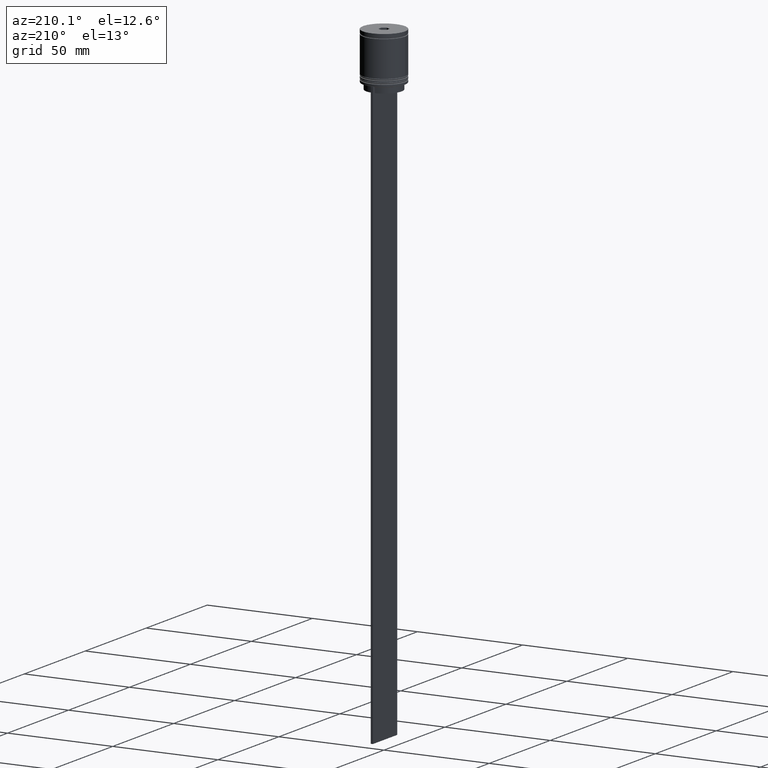
[diagram: clean part render]
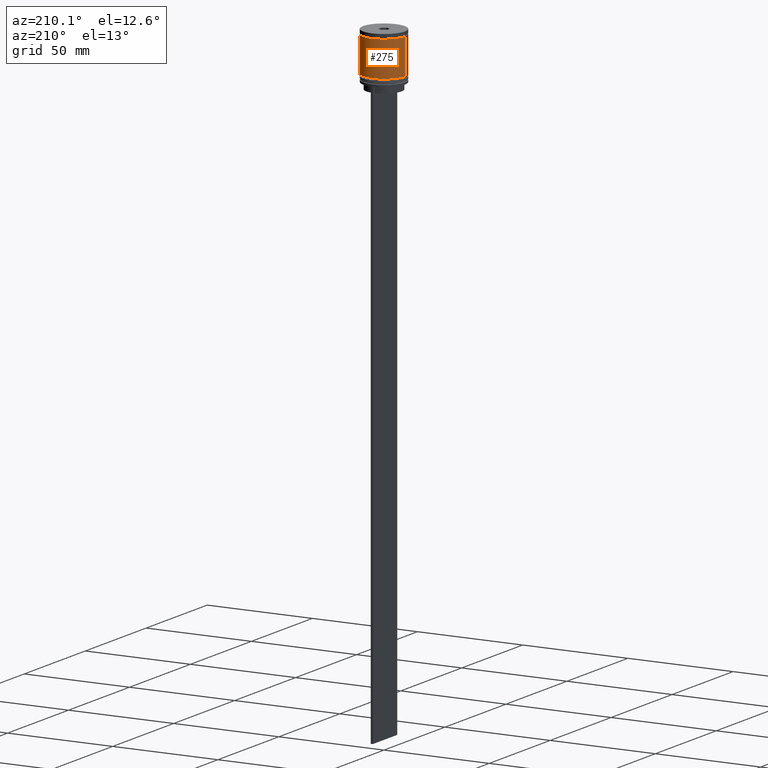
[diagram: same view with one face highlighted and labeled with its STEP entity id]
A machine part, auxiliary view. The second image highlights one B-rep face of the part: STEP entity #275.
In plain terms, the highlighted cylindrical surface (edge-blend (fillet) strip) has radius 10 mm, axis along (-0, -0, 1).
Its self-contained STEP definition (entity closure, byte-faithful):
#19 = CARTESIAN_POINT ( 'NONE',  ( -10.00000000000000355, 1.224646799147353651E-15, -19.00000000000000000 ) ) ;
#34 = AXIS2_PLACEMENT_3D ( 'NONE', #683, #830, #1323 ) ;
#157 = DIRECTION ( 'NONE',  ( 1.000000000000000000, 0.000000000000000000, 0.000000000000000000 ) ) ;
#240 = VERTEX_POINT ( 'NONE', #19 ) ;
#275 = ADVANCED_FACE ( 'NONE', ( #1583 ), #1890, .T. ) ;
#291 = CARTESIAN_POINT ( 'NONE',  ( 10.00000000000000178, 0.000000000000000000, -19.00000000000000000 ) ) ;
#362 = EDGE_LOOP ( 'NONE', ( #1587, #1832, #1235, #1886 ) ) ;
#520 = DIRECTION ( 'NONE',  ( -0.000000000000000000, -0.000000000000000000, 1.000000000000000000 ) ) ;
#564 = DIRECTION ( 'NONE',  ( -0.000000000000000000, -0.000000000000000000, 1.000000000000000000 ) ) ;
#571 = VECTOR ( 'NONE', #520, 1000.000000000000000 ) ;
#619 = DIRECTION ( 'NONE',  ( -0.000000000000000000, -0.000000000000000000, 1.000000000000000000 ) ) ;
#639 = VERTEX_POINT ( 'NONE', #960 ) ;
#683 = CARTESIAN_POINT ( 'NONE',  ( 0.000000000000000000, 0.000000000000000000, -19.00000000000000000 ) ) ;
#799 = EDGE_CURVE ( 'NONE', #639, #858, #1711, .T. ) ;
#812 = DIRECTION ( 'NONE',  ( -0.000000000000000000, -0.000000000000000000, 1.000000000000000000 ) ) ;
#825 = EDGE_CURVE ( 'NONE', #1086, #639, #1938, .T. ) ;
#830 = DIRECTION ( 'NONE',  ( -0.000000000000000000, -0.000000000000000000, 1.000000000000000000 ) ) ;
#841 = CARTESIAN_POINT ( 'NONE',  ( -9.999999999999996447, 1.224646799147352862E-15, -2.199999999999995293 ) ) ;
#858 = VERTEX_POINT ( 'NONE', #841 ) ;
#888 = EDGE_CURVE ( 'NONE', #1086, #240, #1845, .T. ) ;
#960 = CARTESIAN_POINT ( 'NONE',  ( 9.999999999999996447, 0.000000000000000000, -2.199999999999995293 ) ) ;
#993 = AXIS2_PLACEMENT_3D ( 'NONE', #2066, #619, #157 ) ;
#1038 = VECTOR ( 'NONE', #564, 1000.000000000000000 ) ;
#1086 = VERTEX_POINT ( 'NONE', #291 ) ;
#1235 = ORIENTED_EDGE ( 'NONE', *, *, #799, .F. ) ;
#1323 = DIRECTION ( 'NONE',  ( 1.000000000000000000, 0.000000000000000000, 0.000000000000000000 ) ) ;
#1330 = LINE ( 'NONE', #1681, #1038 ) ;
#1412 = AXIS2_PLACEMENT_3D ( 'NONE', #1808, #812, #1962 ) ;
#1583 = FACE_OUTER_BOUND ( 'NONE', #362, .T. ) ;
#1587 = ORIENTED_EDGE ( 'NONE', *, *, #888, .T. ) ;
#1681 = CARTESIAN_POINT ( 'NONE',  ( -9.999999999999998224, 1.224646799147353059E-15, 0.000000000000000000 ) ) ;
#1711 = CIRCLE ( 'NONE', #1412, 9.999999999999996447 ) ;
#1793 = EDGE_CURVE ( 'NONE', #240, #858, #1330, .T. ) ;
#1808 = CARTESIAN_POINT ( 'NONE',  ( 0.000000000000000000, 0.000000000000000000, -2.199999999999995293 ) ) ;
#1832 = ORIENTED_EDGE ( 'NONE', *, *, #1793, .T. ) ;
#1845 = CIRCLE ( 'NONE', #34, 10.00000000000000178 ) ;
#1886 = ORIENTED_EDGE ( 'NONE', *, *, #825, .F. ) ;
#1890 = CYLINDRICAL_SURFACE ( 'NONE', #993, 9.999999999999998224 ) ;
#1938 = LINE ( 'NONE', #1980, #571 ) ;
#1962 = DIRECTION ( 'NONE',  ( 1.000000000000000000, 0.000000000000000000, 0.000000000000000000 ) ) ;
#1980 = CARTESIAN_POINT ( 'NONE',  ( 9.999999999999998224, 0.000000000000000000, 0.000000000000000000 ) ) ;
#2066 = CARTESIAN_POINT ( 'NONE',  ( 0.000000000000000000, 0.000000000000000000, 0.000000000000000000 ) ) ;